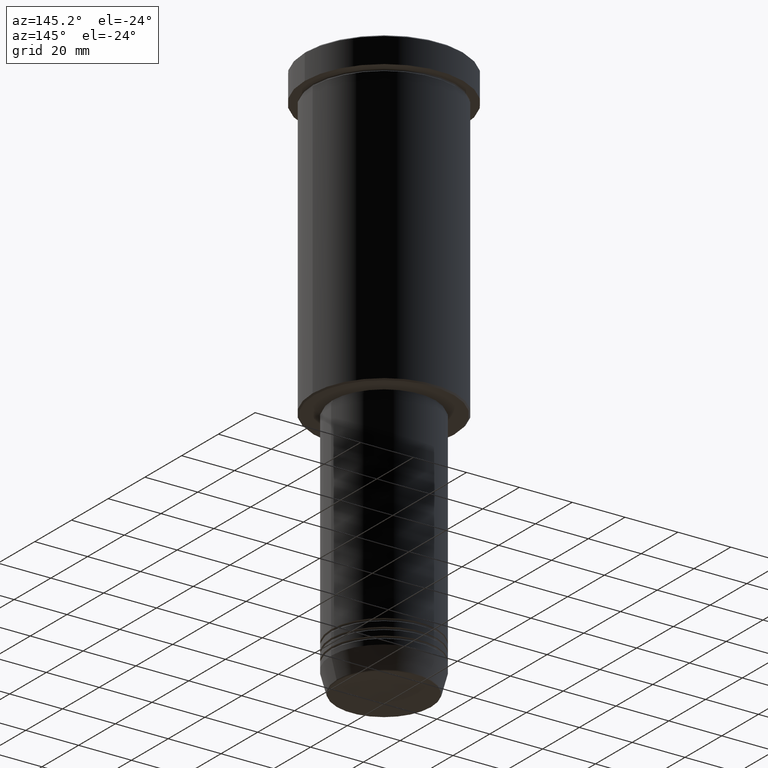
[diagram: clean part render]
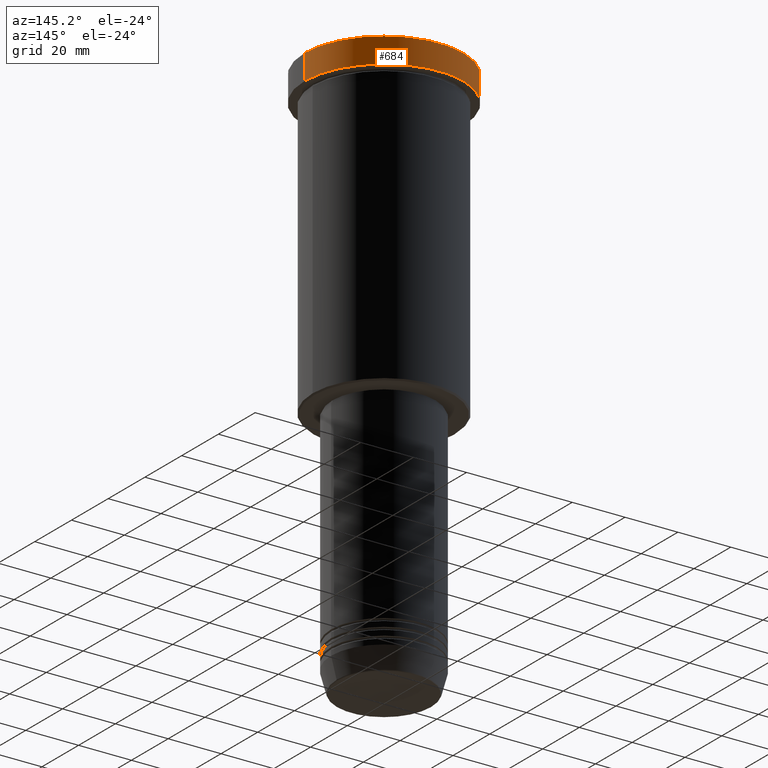
[diagram: same view with one face highlighted and labeled with its STEP entity id]
A machine part, auxiliary view. The second image highlights one B-rep face of the part: STEP entity #684.
In plain terms, the highlighted cylindrical surface (partial cylindrical patch) has radius 30 mm, axis along (-0, -0, 1).
Its self-contained STEP definition (entity closure, byte-faithful):
#36 = DIRECTION ( 'NONE',  ( 0.000000000000000000, 0.000000000000000000, -1.000000000000000000 ) ) ;
#47 = CARTESIAN_POINT ( 'NONE',  ( 30.00000000000000000, 0.000000000000000000, -9.999999999999992895 ) ) ;
#48 = CIRCLE ( 'NONE', #469, 30.00000000000000000 ) ;
#54 = EDGE_CURVE ( 'NONE', #700, #1002, #288, .T. ) ;
#55 = CYLINDRICAL_SURFACE ( 'NONE', #735, 30.00000000000000000 ) ;
#125 = ORIENTED_EDGE ( 'NONE', *, *, #710, .T. ) ;
#150 = EDGE_LOOP ( 'NONE', ( #125, #285, #863, #434 ) ) ;
#164 = DIRECTION ( 'NONE',  ( -0.000000000000000000, -0.000000000000000000, 1.000000000000000000 ) ) ;
#221 = CARTESIAN_POINT ( 'NONE',  ( -30.00000000000000000, 3.673940397442059178E-15, 0.000000000000000000 ) ) ;
#234 = DIRECTION ( 'NONE',  ( -0.000000000000000000, -0.000000000000000000, 1.000000000000000000 ) ) ;
#260 = VECTOR ( 'NONE', #164, 1000.000000000000000 ) ;
#285 = ORIENTED_EDGE ( 'NONE', *, *, #54, .T. ) ;
#288 = LINE ( 'NONE', #221, #594 ) ;
#310 = FACE_OUTER_BOUND ( 'NONE', #150, .T. ) ;
#344 = EDGE_CURVE ( 'NONE', #750, #444, #576, .T. ) ;
#401 = DIRECTION ( 'NONE',  ( 1.000000000000000000, 0.000000000000000000, 0.000000000000000000 ) ) ;
#434 = ORIENTED_EDGE ( 'NONE', *, *, #344, .F. ) ;
#444 = VERTEX_POINT ( 'NONE', #988 ) ;
#459 = CARTESIAN_POINT ( 'NONE',  ( -30.00000000000000000, 3.673940397442059178E-15, -0.4999999999999518718 ) ) ;
#462 = DIRECTION ( 'NONE',  ( -0.000000000000000000, -0.000000000000000000, 1.000000000000000000 ) ) ;
#469 = AXIS2_PLACEMENT_3D ( 'NONE', #856, #36, #401 ) ;
#496 = CARTESIAN_POINT ( 'NONE',  ( 0.000000000000000000, 0.000000000000000000, -9.999999999999992895 ) ) ;
#501 = CARTESIAN_POINT ( 'NONE',  ( 0.000000000000000000, 0.000000000000000000, 0.000000000000000000 ) ) ;
#576 = LINE ( 'NONE', #979, #260 ) ;
#594 = VECTOR ( 'NONE', #462, 1000.000000000000000 ) ;
#600 = DIRECTION ( 'NONE',  ( 1.000000000000000000, 0.000000000000000000, 0.000000000000000000 ) ) ;
#684 = ADVANCED_FACE ( 'NONE', ( #310 ), #55, .T. ) ;
#700 = VERTEX_POINT ( 'NONE', #950 ) ;
#710 = EDGE_CURVE ( 'NONE', #750, #700, #1042, .T. ) ;
#735 = AXIS2_PLACEMENT_3D ( 'NONE', #501, #781, #600 ) ;
#750 = VERTEX_POINT ( 'NONE', #47 ) ;
#781 = DIRECTION ( 'NONE',  ( -0.000000000000000000, -0.000000000000000000, 1.000000000000000000 ) ) ;
#784 = EDGE_CURVE ( 'NONE', #1002, #444, #48, .T. ) ;
#785 = DIRECTION ( 'NONE',  ( 1.000000000000000000, 0.000000000000000000, 0.000000000000000000 ) ) ;
#856 = CARTESIAN_POINT ( 'NONE',  ( 0.000000000000000000, 0.000000000000000000, -0.4999999999999518718 ) ) ;
#863 = ORIENTED_EDGE ( 'NONE', *, *, #784, .T. ) ;
#950 = CARTESIAN_POINT ( 'NONE',  ( -30.00000000000000000, 3.673940397442059178E-15, -9.999999999999992895 ) ) ;
#979 = CARTESIAN_POINT ( 'NONE',  ( 30.00000000000000000, 0.000000000000000000, 0.000000000000000000 ) ) ;
#988 = CARTESIAN_POINT ( 'NONE',  ( 30.00000000000000000, 0.000000000000000000, -0.4999999999999518718 ) ) ;
#1002 = VERTEX_POINT ( 'NONE', #459 ) ;
#1042 = CIRCLE ( 'NONE', #1173, 30.00000000000000000 ) ;
#1173 = AXIS2_PLACEMENT_3D ( 'NONE', #496, #234, #785 ) ;